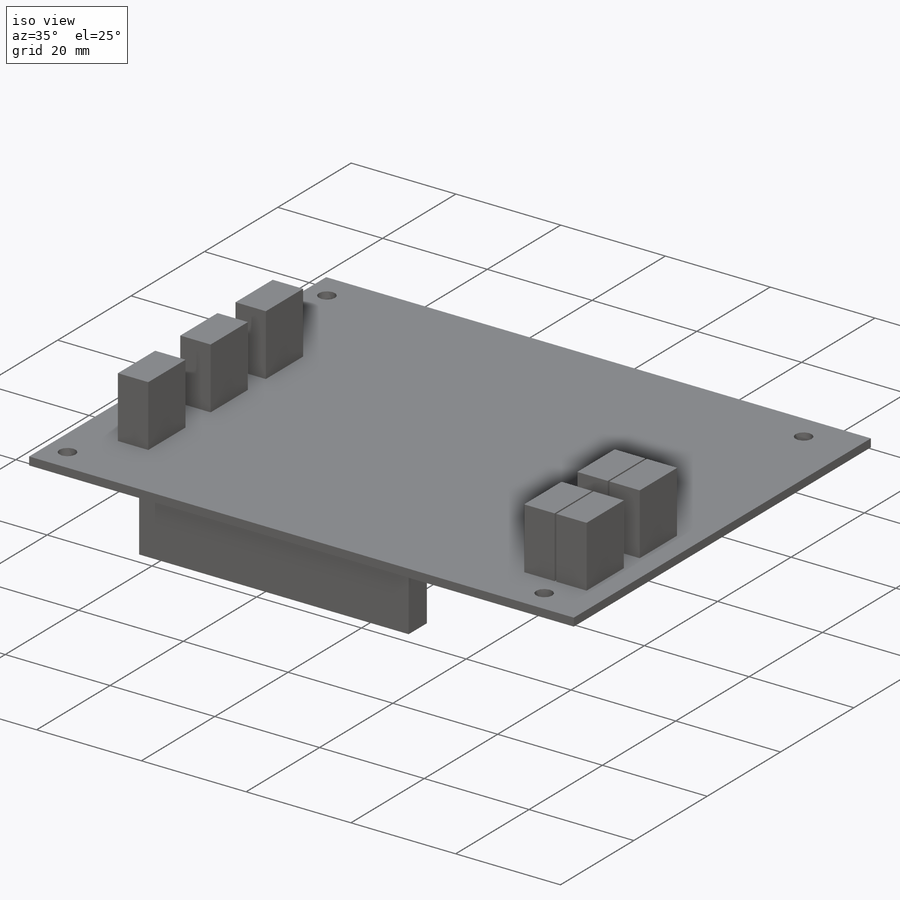
[diagram: iso view]
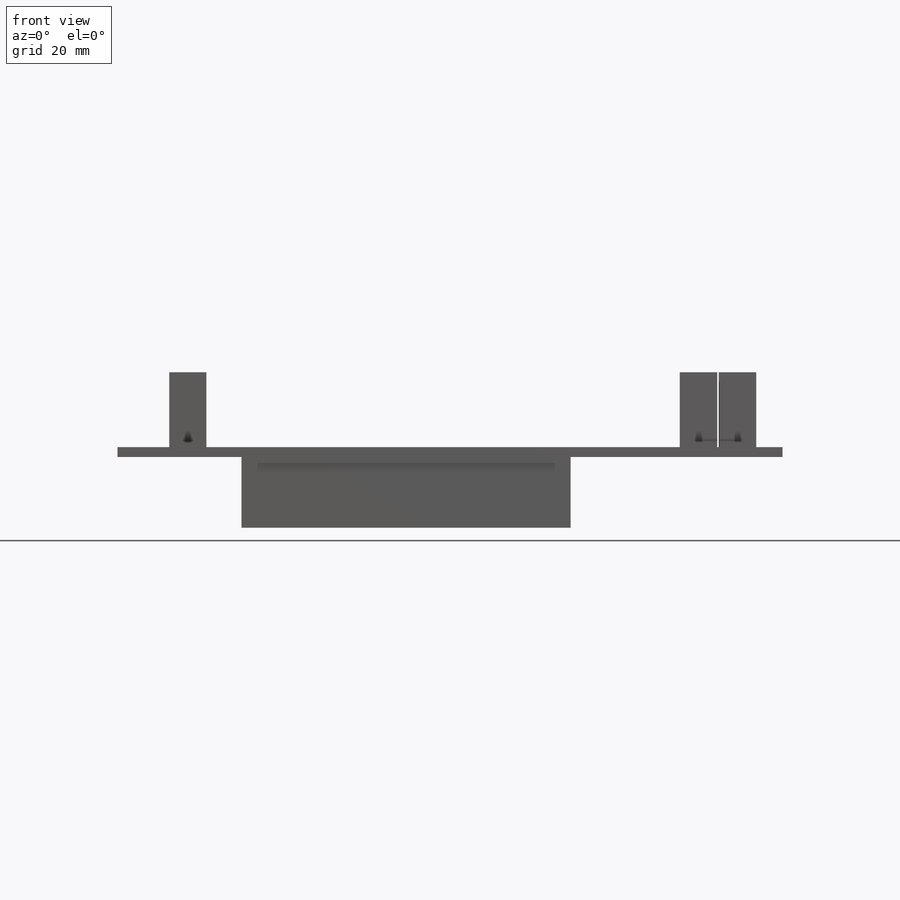
[diagram: front view]
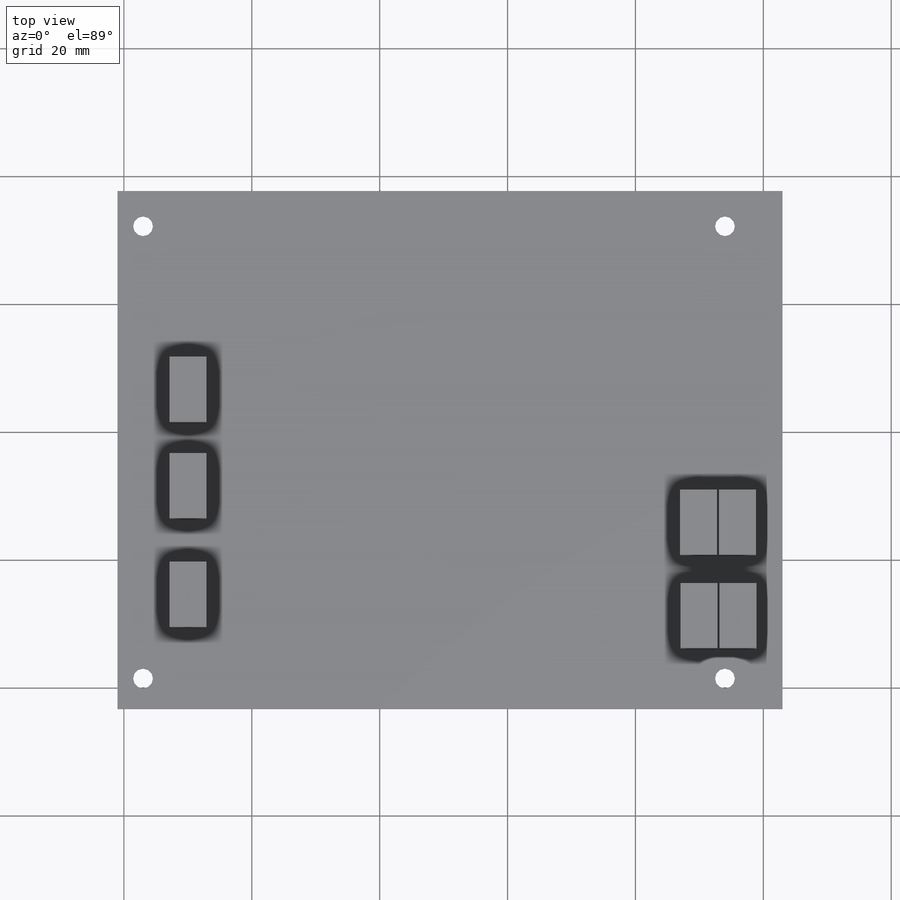
[diagram: top view]
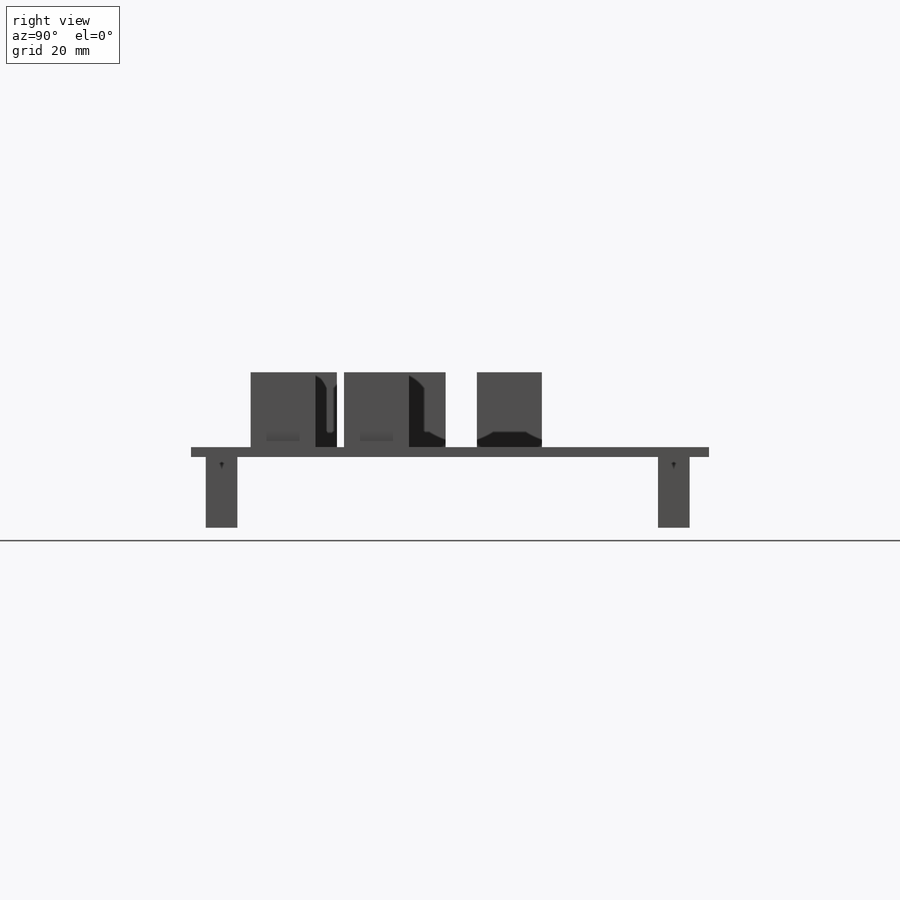
[diagram: right view]
SOLIDWORKS PART (.sldprt)
format: sldprt  version: not decoded by parser v0  size: 426,496 bytes
history: native  units: mm
features: sketch x4, extrude x4, plane x3, material x1 (+10 scaffold rows collapsed)
feature tree (22):
  scaffold x10  (default folders/planes/origin — collapsed)
  material  "Matériau <non spécifié>"
  plane  "Plan de face"
  plane  "Plan de dessus"
  plane  "Plan de droite"
  sketch  "Esquisse1"  dims[c1.D5=3.1mm c1.D6=3.1mm c1.D7=3.1mm c1.D8=3.1mm c1.D9=0.9mm c1.D1=21.0mm c1.D2=3.5mm c1.D3=81.0mm c1.D4=104.0mm c2.D9=51.46mm c2.D10=1.205mm c2.D11=1.6mm c2.D12=~1.268558mm c2.D13=1.68mm c2.D14=~2.948558mm c3.D12=4.95mm c3.D13=51.46mm c3.D14=4.95mm c3.D15=1.6mm c3.D16=74.865mm c3.D17=2.085mm c3.D18=2.865mm c3.D19=2.475mm c3.D20=2.475mm c4.D16=2.475mm]
  extrude  "Extrusion2"  Depth=1.55mm
  sketch  "Esquisse2"  dims[D1=51.46mm D2=4.95mm D3=2.475mm D4=1.6mm D5=51.46mm D6=4.95mm D7=2.475mm D8=1.6mm]
  extrude  "Extrusion3"  Depth=12.6mm
  sketch  "Esquisse3"  dims[D1=10.16mm D2=5.8mm D3=7.1mm D4=9.15mm D5=7.1mm D6=10.16mm D7=26.15mm D8=7.1mm D9=41.202mm D10=10.16mm D11=5.8mm]
  extrude  "Extrusion4"  Depth=11.7mm
  sketch  "Esquisse4"  dims[D1=10.16mm D2=5.8mm D3=67.0mm D4=5.83mm D5=73.1mm D6=5.83mm D7=10.16mm D8=5.8mm D9=20.43mm D10=20.43mm]
  extrude  "Extrusion5"  Depth=11.7mm
decode coverage: 8 of 8 modeling features carry decoded parameters
note: ~ marks probable driven/reference dimensions
note: suppression state not decoded; provenance and decode notes live in map.json
